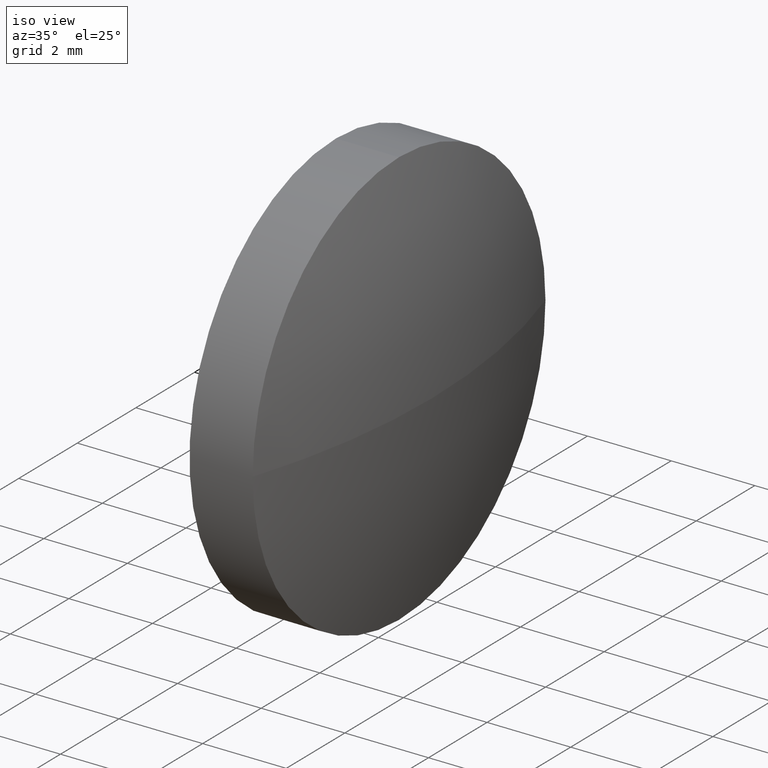
[diagram: clean part render]
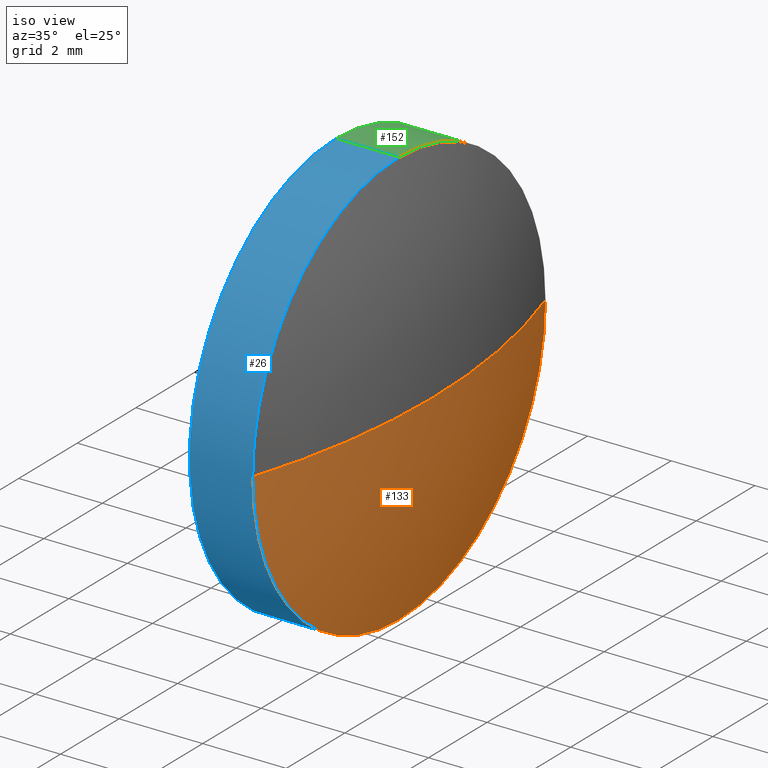
[diagram: same view with three faces highlighted in distinct colors, each labeled with its STEP entity id]
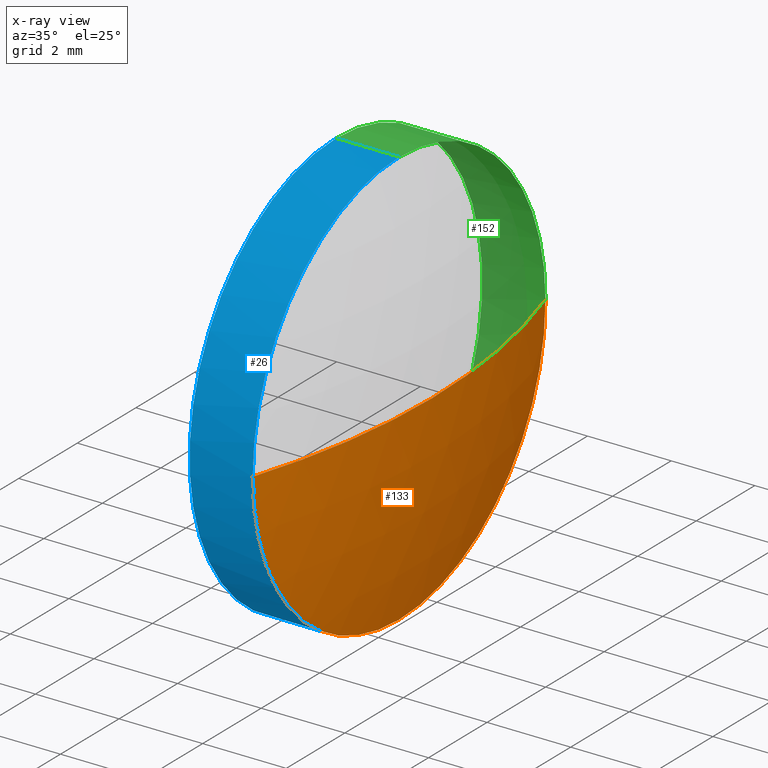
[diagram: x-ray of the same camera — body ghosted, the three highlighted faces saturated]
A machine part, iso view with three faces highlighted in distinct colors.
The next image is the same camera in x-ray (body ghosted, the three faces saturated) — at least one of them is partly hidden behind the body in this view.
Their STEP definitions:

[orange] entity #133 — the highlighted spherical surface has radius 16.2178 mm.
#3 = VERTEX_POINT ( 'NONE', #161 ) ;
#4 = AXIS2_PLACEMENT_3D ( 'NONE', #78, #125, #124 ) ;
#8 = CARTESIAN_POINT ( 'NONE',  ( 448.1260620290427700, 82.52816574681480700, 0.0000000000000000000 ) ) ;
#11 = AXIS2_PLACEMENT_3D ( 'NONE', #35, #178, #33 ) ;
#14 = ORIENTED_EDGE ( 'NONE', *, *, #130, .F. ) ;
#24 = VERTEX_POINT ( 'NONE', #121 ) ;
#25 = ORIENTED_EDGE ( 'NONE', *, *, #57, .F. ) ;
#31 = CARTESIAN_POINT ( 'NONE',  ( 432.6982772189161900, 82.52816574681475000, 0.0000000000000000000 ) ) ;
#33 = DIRECTION ( 'NONE',  ( 0.0000000000000000000, 1.000000000000000000, 0.0000000000000000000 ) ) ;
#35 = CARTESIAN_POINT ( 'NONE',  ( 432.6982772189161900, 82.52816574681475000, 0.0000000000000000000 ) ) ;
#45 = EDGE_CURVE ( 'NONE', #3, #111, #53, .T. ) ;
#46 = SPHERICAL_SURFACE ( 'NONE', #11, 16.21778481012659200 ) ;
#47 = CIRCLE ( 'NONE', #4, 5.000000000000004400 ) ;
#49 = DIRECTION ( 'NONE',  ( 1.000000000000000000, 0.0000000000000000000, 0.0000000000000000000 ) ) ;
#53 = CIRCLE ( 'NONE', #84, 16.21778481012658800 ) ;
#57 = EDGE_CURVE ( 'NONE', #60, #111, #163, .T. ) ;
#60 = VERTEX_POINT ( 'NONE', #104 ) ;
#70 = EDGE_CURVE ( 'NONE', #3, #24, #128, .T. ) ;
#71 = DIRECTION ( 'NONE',  ( 0.0000000000000000000, 1.000000000000000000, 1.224646799147353500E-016 ) ) ;
#76 = ORIENTED_EDGE ( 'NONE', *, *, #70, .F. ) ;
#78 = CARTESIAN_POINT ( 'NONE',  ( 448.1260620290427700, 82.52816574681480700, 0.0000000000000000000 ) ) ;
#81 = EDGE_LOOP ( 'NONE', ( #76, #83, #25, #14 ) ) ;
#83 = ORIENTED_EDGE ( 'NONE', *, *, #45, .T. ) ;
#84 = AXIS2_PLACEMENT_3D ( 'NONE', #31, #151, #71 ) ;
#93 = DIRECTION ( 'NONE',  ( -0.0000000000000000000, 0.0000000000000000000, 1.000000000000000000 ) ) ;
#104 = CARTESIAN_POINT ( 'NONE',  ( 448.1260620290427700, 82.52816574681480700, -5.000000000000004400 ) ) ;
#111 = VERTEX_POINT ( 'NONE', #179 ) ;
#113 = DIRECTION ( 'NONE',  ( -1.000000000000000000, -0.0000000000000000000, -0.0000000000000000000 ) ) ;
#114 = AXIS2_PLACEMENT_3D ( 'NONE', #166, #93, #49 ) ;
#115 = DIRECTION ( 'NONE',  ( 0.0000000000000000000, 0.0000000000000000000, 1.000000000000000000 ) ) ;
#121 = CARTESIAN_POINT ( 'NONE',  ( 448.1260620290427700, 87.52816574681479300, 0.0000000000000000000 ) ) ;
#124 = DIRECTION ( 'NONE',  ( 0.0000000000000000000, 0.0000000000000000000, 1.000000000000000000 ) ) ;
#125 = DIRECTION ( 'NONE',  ( -1.000000000000000000, -0.0000000000000000000, -0.0000000000000000000 ) ) ;
#128 = CIRCLE ( 'NONE', #114, 16.21778481012658800 ) ;
#130 = EDGE_CURVE ( 'NONE', #24, #60, #47, .T. ) ;
#133 = ADVANCED_FACE ( 'NONE', ( #146 ), #46, .T. ) ;
#146 = FACE_OUTER_BOUND ( 'NONE', #81, .T. ) ;
#151 = DIRECTION ( 'NONE',  ( 0.0000000000000000000, 1.224646799147353200E-016, -1.000000000000000000 ) ) ;
#161 = CARTESIAN_POINT ( 'NONE',  ( 448.9160620290427900, 82.52816574681475000, 0.0000000000000000000 ) ) ;
#163 = CIRCLE ( 'NONE', #171, 5.000000000000004400 ) ;
#166 = CARTESIAN_POINT ( 'NONE',  ( 432.6982772189161900, 82.52816574681475000, 0.0000000000000000000 ) ) ;
#171 = AXIS2_PLACEMENT_3D ( 'NONE', #8, #113, #115 ) ;
#178 = DIRECTION ( 'NONE',  ( -0.0000000000000000000, 0.0000000000000000000, -1.000000000000000000 ) ) ;
#179 = CARTESIAN_POINT ( 'NONE',  ( 448.1260620290427700, 77.52816574681476400, -6.123233995736768300E-016 ) ) ;

[blue] entity #26 — the highlighted cylindrical surface (partial cylindrical patch) has radius 5 mm, axis along (-1, -0, -0).
#2 = VECTOR ( 'NONE', #164, 1000.000000000000000 ) ;
#5 = CARTESIAN_POINT ( 'NONE',  ( 448.1260620290427700, 82.52816574681480700, 0.0000000000000000000 ) ) ;
#8 = CARTESIAN_POINT ( 'NONE',  ( 448.1260620290427700, 82.52816574681480700, 0.0000000000000000000 ) ) ;
#9 = CARTESIAN_POINT ( 'NONE',  ( 446.6160620290427800, 82.52816574681480700, 5.000000000000004400 ) ) ;
#22 = ORIENTED_EDGE ( 'NONE', *, *, #50, .F. ) ;
#23 = EDGE_CURVE ( 'NONE', #111, #55, #157, .T. ) ;
#26 = ADVANCED_FACE ( 'NONE', ( #27 ), #119, .T. ) ;
#27 = FACE_OUTER_BOUND ( 'NONE', #44, .T. ) ;
#28 = DIRECTION ( 'NONE',  ( -1.000000000000000000, -0.0000000000000000000, -0.0000000000000000000 ) ) ;
#30 = ORIENTED_EDGE ( 'NONE', *, *, #172, .T. ) ;
#34 = ORIENTED_EDGE ( 'NONE', *, *, #23, .T. ) ;
#44 = EDGE_LOOP ( 'NONE', ( #89, #186, #34, #30, #22 ) ) ;
#50 = EDGE_CURVE ( 'NONE', #63, #176, #181, .T. ) ;
#55 = VERTEX_POINT ( 'NONE', #59 ) ;
#56 = LINE ( 'NONE', #144, #2 ) ;
#57 = EDGE_CURVE ( 'NONE', #60, #111, #163, .T. ) ;
#59 = CARTESIAN_POINT ( 'NONE',  ( 448.1260620290427700, 82.52816574681480700, 5.000000000000004400 ) ) ;
#60 = VERTEX_POINT ( 'NONE', #104 ) ;
#63 = VERTEX_POINT ( 'NONE', #142 ) ;
#72 = DIRECTION ( 'NONE',  ( 0.0000000000000000000, 0.0000000000000000000, 1.000000000000000000 ) ) ;
#74 = VECTOR ( 'NONE', #167, 1000.000000000000000 ) ;
#75 = CARTESIAN_POINT ( 'NONE',  ( 445.6745115572683200, 82.52816574681480700, 5.000000000000004400 ) ) ;
#86 = AXIS2_PLACEMENT_3D ( 'NONE', #106, #160, #72 ) ;
#88 = CARTESIAN_POINT ( 'NONE',  ( 445.6745115572683200, 82.52816574681480700, 0.0000000000000000000 ) ) ;
#89 = ORIENTED_EDGE ( 'NONE', *, *, #185, .F. ) ;
#100 = AXIS2_PLACEMENT_3D ( 'NONE', #5, #108, #177 ) ;
#104 = CARTESIAN_POINT ( 'NONE',  ( 448.1260620290427700, 82.52816574681480700, -5.000000000000004400 ) ) ;
#105 = DIRECTION ( 'NONE',  ( 0.0000000000000000000, 0.0000000000000000000, 1.000000000000000000 ) ) ;
#106 = CARTESIAN_POINT ( 'NONE',  ( 446.6160620290427800, 82.52816574681480700, 0.0000000000000000000 ) ) ;
#108 = DIRECTION ( 'NONE',  ( -1.000000000000000000, -0.0000000000000000000, -0.0000000000000000000 ) ) ;
#111 = VERTEX_POINT ( 'NONE', #179 ) ;
#113 = DIRECTION ( 'NONE',  ( -1.000000000000000000, -0.0000000000000000000, -0.0000000000000000000 ) ) ;
#115 = DIRECTION ( 'NONE',  ( 0.0000000000000000000, 0.0000000000000000000, 1.000000000000000000 ) ) ;
#119 = CYLINDRICAL_SURFACE ( 'NONE', #159, 5.000000000000004400 ) ;
#142 = CARTESIAN_POINT ( 'NONE',  ( 446.6160620290427800, 82.52816574681480700, -5.000000000000004400 ) ) ;
#144 = CARTESIAN_POINT ( 'NONE',  ( 445.6745115572683200, 82.52816574681480700, -5.000000000000004400 ) ) ;
#150 = LINE ( 'NONE', #75, #74 ) ;
#157 = CIRCLE ( 'NONE', #100, 5.000000000000004400 ) ;
#159 = AXIS2_PLACEMENT_3D ( 'NONE', #88, #28, #105 ) ;
#160 = DIRECTION ( 'NONE',  ( -1.000000000000000000, -0.0000000000000000000, -0.0000000000000000000 ) ) ;
#163 = CIRCLE ( 'NONE', #171, 5.000000000000004400 ) ;
#164 = DIRECTION ( 'NONE',  ( -1.000000000000000000, -0.0000000000000000000, -0.0000000000000000000 ) ) ;
#167 = DIRECTION ( 'NONE',  ( -1.000000000000000000, -0.0000000000000000000, -0.0000000000000000000 ) ) ;
#171 = AXIS2_PLACEMENT_3D ( 'NONE', #8, #113, #115 ) ;
#172 = EDGE_CURVE ( 'NONE', #55, #176, #150, .T. ) ;
#176 = VERTEX_POINT ( 'NONE', #9 ) ;
#177 = DIRECTION ( 'NONE',  ( 0.0000000000000000000, 0.0000000000000000000, 1.000000000000000000 ) ) ;
#179 = CARTESIAN_POINT ( 'NONE',  ( 448.1260620290427700, 77.52816574681476400, -6.123233995736768300E-016 ) ) ;
#181 = CIRCLE ( 'NONE', #86, 5.000000000000004400 ) ;
#185 = EDGE_CURVE ( 'NONE', #60, #63, #56, .T. ) ;
#186 = ORIENTED_EDGE ( 'NONE', *, *, #57, .T. ) ;

[green] entity #152 — the highlighted cylindrical surface (partial cylindrical patch) has radius 5 mm, axis along (-1, -0, -0).
#1 = ORIENTED_EDGE ( 'NONE', *, *, #185, .T. ) ;
#2 = VECTOR ( 'NONE', #164, 1000.000000000000000 ) ;
#4 = AXIS2_PLACEMENT_3D ( 'NONE', #78, #125, #124 ) ;
#9 = CARTESIAN_POINT ( 'NONE',  ( 446.6160620290427800, 82.52816574681480700, 5.000000000000004400 ) ) ;
#16 = DIRECTION ( 'NONE',  ( -1.000000000000000000, -0.0000000000000000000, -0.0000000000000000000 ) ) ;
#24 = VERTEX_POINT ( 'NONE', #121 ) ;
#29 = AXIS2_PLACEMENT_3D ( 'NONE', #48, #61, #36 ) ;
#36 = DIRECTION ( 'NONE',  ( 0.0000000000000000000, 0.0000000000000000000, 1.000000000000000000 ) ) ;
#38 = CIRCLE ( 'NONE', #29, 5.000000000000004400 ) ;
#47 = CIRCLE ( 'NONE', #4, 5.000000000000004400 ) ;
#48 = CARTESIAN_POINT ( 'NONE',  ( 448.1260620290427700, 82.52816574681480700, 0.0000000000000000000 ) ) ;
#54 = EDGE_CURVE ( 'NONE', #176, #63, #73, .T. ) ;
#55 = VERTEX_POINT ( 'NONE', #59 ) ;
#56 = LINE ( 'NONE', #144, #2 ) ;
#59 = CARTESIAN_POINT ( 'NONE',  ( 448.1260620290427700, 82.52816574681480700, 5.000000000000004400 ) ) ;
#60 = VERTEX_POINT ( 'NONE', #104 ) ;
#61 = DIRECTION ( 'NONE',  ( -1.000000000000000000, -0.0000000000000000000, -0.0000000000000000000 ) ) ;
#63 = VERTEX_POINT ( 'NONE', #142 ) ;
#66 = ORIENTED_EDGE ( 'NONE', *, *, #54, .F. ) ;
#67 = ORIENTED_EDGE ( 'NONE', *, *, #130, .T. ) ;
#73 = CIRCLE ( 'NONE', #134, 5.000000000000004400 ) ;
#74 = VECTOR ( 'NONE', #167, 1000.000000000000000 ) ;
#75 = CARTESIAN_POINT ( 'NONE',  ( 445.6745115572683200, 82.52816574681480700, 5.000000000000004400 ) ) ;
#78 = CARTESIAN_POINT ( 'NONE',  ( 448.1260620290427700, 82.52816574681480700, 0.0000000000000000000 ) ) ;
#79 = CARTESIAN_POINT ( 'NONE',  ( 446.6160620290427800, 82.52816574681480700, 0.0000000000000000000 ) ) ;
#90 = CARTESIAN_POINT ( 'NONE',  ( 445.6745115572683200, 82.52816574681480700, 0.0000000000000000000 ) ) ;
#96 = ORIENTED_EDGE ( 'NONE', *, *, #174, .T. ) ;
#102 = ORIENTED_EDGE ( 'NONE', *, *, #172, .F. ) ;
#104 = CARTESIAN_POINT ( 'NONE',  ( 448.1260620290427700, 82.52816574681480700, -5.000000000000004400 ) ) ;
#116 = FACE_OUTER_BOUND ( 'NONE', #138, .T. ) ;
#121 = CARTESIAN_POINT ( 'NONE',  ( 448.1260620290427700, 87.52816574681479300, 0.0000000000000000000 ) ) ;
#124 = DIRECTION ( 'NONE',  ( 0.0000000000000000000, 0.0000000000000000000, 1.000000000000000000 ) ) ;
#125 = DIRECTION ( 'NONE',  ( -1.000000000000000000, -0.0000000000000000000, -0.0000000000000000000 ) ) ;
#130 = EDGE_CURVE ( 'NONE', #24, #60, #47, .T. ) ;
#134 = AXIS2_PLACEMENT_3D ( 'NONE', #79, #165, #162 ) ;
#138 = EDGE_LOOP ( 'NONE', ( #67, #1, #66, #102, #96 ) ) ;
#142 = CARTESIAN_POINT ( 'NONE',  ( 446.6160620290427800, 82.52816574681480700, -5.000000000000004400 ) ) ;
#144 = CARTESIAN_POINT ( 'NONE',  ( 445.6745115572683200, 82.52816574681480700, -5.000000000000004400 ) ) ;
#149 = AXIS2_PLACEMENT_3D ( 'NONE', #90, #16, #154 ) ;
#150 = LINE ( 'NONE', #75, #74 ) ;
#152 = ADVANCED_FACE ( 'NONE', ( #116 ), #158, .T. ) ;
#154 = DIRECTION ( 'NONE',  ( 0.0000000000000000000, 0.0000000000000000000, 1.000000000000000000 ) ) ;
#158 = CYLINDRICAL_SURFACE ( 'NONE', #149, 5.000000000000004400 ) ;
#162 = DIRECTION ( 'NONE',  ( 0.0000000000000000000, 0.0000000000000000000, 1.000000000000000000 ) ) ;
#164 = DIRECTION ( 'NONE',  ( -1.000000000000000000, -0.0000000000000000000, -0.0000000000000000000 ) ) ;
#165 = DIRECTION ( 'NONE',  ( -1.000000000000000000, -0.0000000000000000000, -0.0000000000000000000 ) ) ;
#167 = DIRECTION ( 'NONE',  ( -1.000000000000000000, -0.0000000000000000000, -0.0000000000000000000 ) ) ;
#172 = EDGE_CURVE ( 'NONE', #55, #176, #150, .T. ) ;
#174 = EDGE_CURVE ( 'NONE', #55, #24, #38, .T. ) ;
#176 = VERTEX_POINT ( 'NONE', #9 ) ;
#185 = EDGE_CURVE ( 'NONE', #60, #63, #56, .T. ) ;